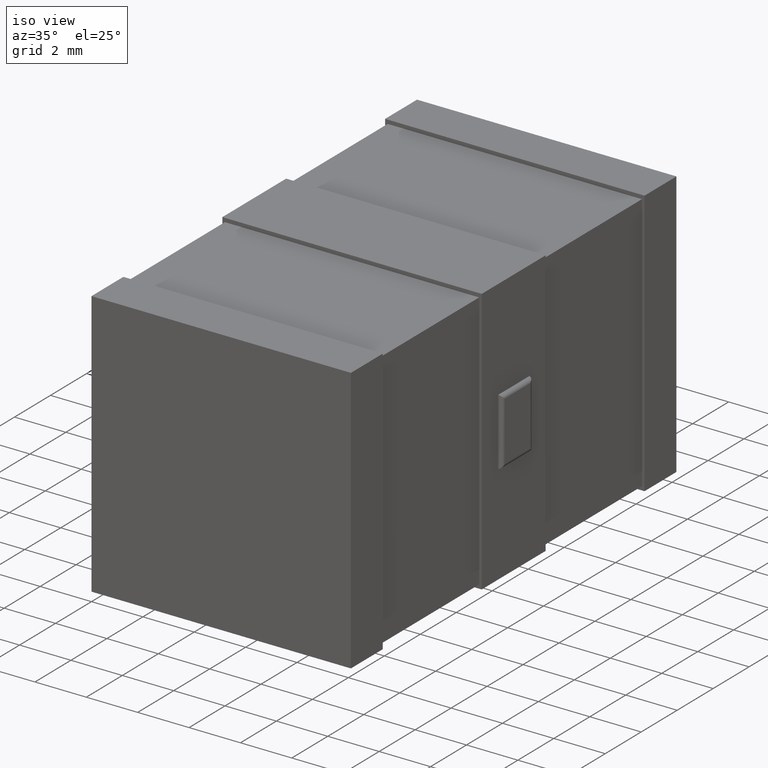
[diagram: clean part render]
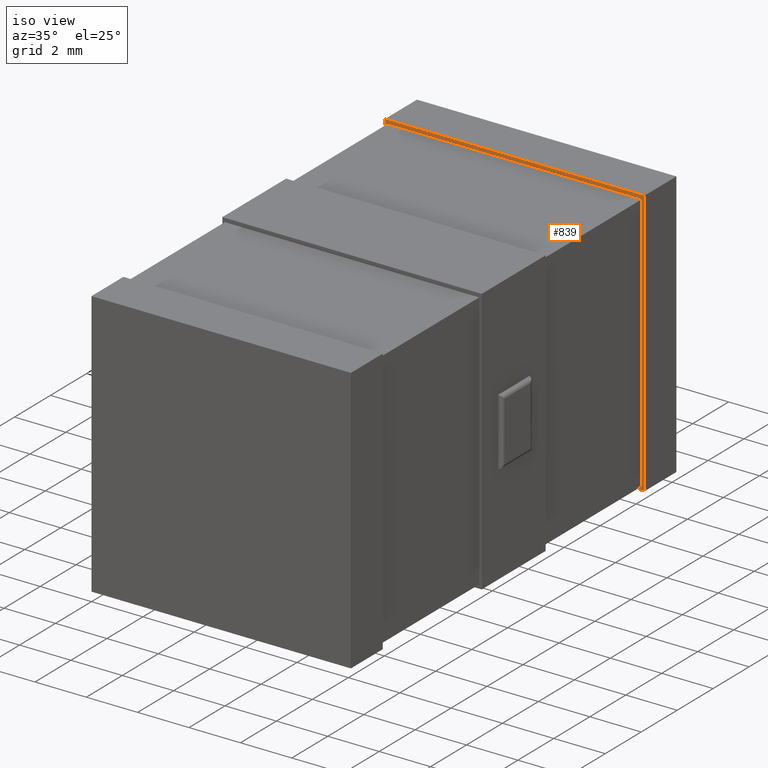
[diagram: same view with one face highlighted and labeled with its STEP entity id]
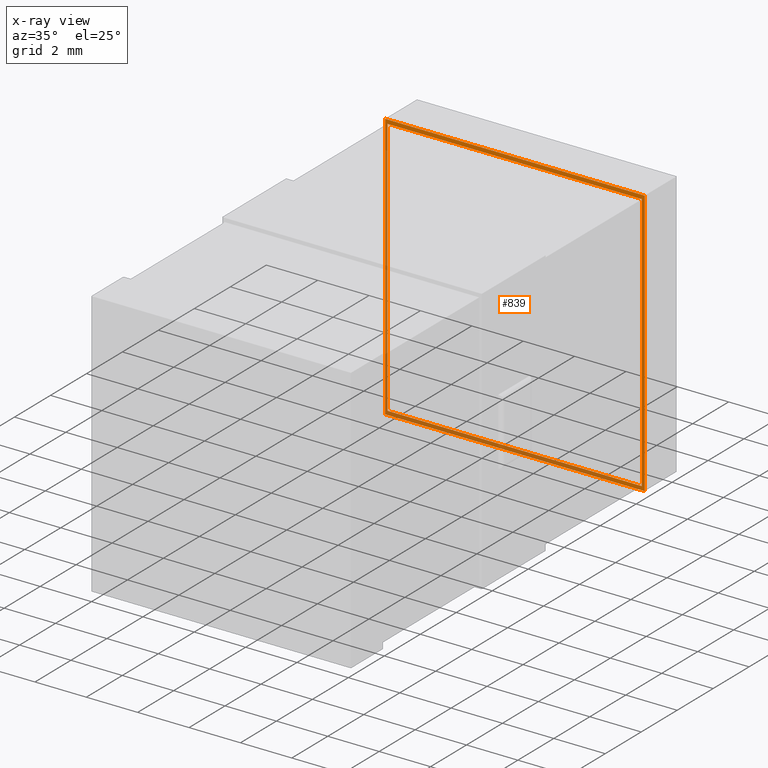
[diagram: x-ray of the same camera — body ghosted, the highlighted face saturated]
A machine part, iso view. The second image highlights one B-rep face of the part: STEP entity #839.
The next image is the same camera in x-ray: the body ghosted, the highlighted face saturated — about 44% of this face is hidden behind the body in this view.
In plain terms, the highlighted planar face has unit normal (-0, 1, 0).
Its self-contained STEP definition (entity closure, byte-faithful):
#23 = VERTEX_POINT ( 'NONE', #1452 ) ;
#52 = EDGE_CURVE ( 'NONE', #1324, #23, #2496, .T. ) ;
#73 = CARTESIAN_POINT ( 'NONE',  ( 0.0000000000000000000, 16.32619999999999600, 0.0000000000000000000 ) ) ;
#86 = ORIENTED_EDGE ( 'NONE', *, *, #2238, .T. ) ;
#177 = EDGE_LOOP ( 'NONE', ( #474, #3029, #2843, #1972 ) ) ;
#253 = VECTOR ( 'NONE', #2459, 1000.000000000000000 ) ;
#284 = VERTEX_POINT ( 'NONE', #2260 ) ;
#340 = VECTOR ( 'NONE', #1582, 1000.000000000000000 ) ;
#474 = ORIENTED_EDGE ( 'NONE', *, *, #2983, .T. ) ;
#488 = LINE ( 'NONE', #2358, #340 ) ;
#507 = EDGE_CURVE ( 'NONE', #1599, #718, #488, .T. ) ;
#510 = ORIENTED_EDGE ( 'NONE', *, *, #507, .F. ) ;
#643 = DIRECTION ( 'NONE',  ( -0.0000000000000000000, -0.0000000000000000000, 1.000000000000000000 ) ) ;
#718 = VERTEX_POINT ( 'NONE', #1483 ) ;
#757 = PLANE ( 'NONE',  #967 ) ;
#796 = DIRECTION ( 'NONE',  ( 0.0000000000000000000, -0.0000000000000000000, 1.000000000000000000 ) ) ;
#831 = VERTEX_POINT ( 'NONE', #2052 ) ;
#839 = ADVANCED_FACE ( 'NONE', ( #959, #3262 ), #757, .F. ) ;
#903 = VERTEX_POINT ( 'NONE', #3149 ) ;
#956 = VECTOR ( 'NONE', #1917, 1000.000000000000000 ) ;
#959 = FACE_OUTER_BOUND ( 'NONE', #1776, .T. ) ;
#967 = AXIS2_PLACEMENT_3D ( 'NONE', #2335, #2617, #796 ) ;
#1012 = VECTOR ( 'NONE', #2558, 1000.000000000000000 ) ;
#1129 = EDGE_CURVE ( 'NONE', #284, #1324, #1876, .T. ) ;
#1155 = CARTESIAN_POINT ( 'NONE',  ( 4.480002920640842700E-016, 16.32620000000000400, 10.40000000000000000 ) ) ;
#1282 = ORIENTED_EDGE ( 'NONE', *, *, #3014, .F. ) ;
#1324 = VERTEX_POINT ( 'NONE', #1957 ) ;
#1345 = LINE ( 'NONE', #3382, #1012 ) ;
#1452 = CARTESIAN_POINT ( 'NONE',  ( 0.1000000000000000100, 16.32620000000000400, 10.24999999999999800 ) ) ;
#1483 = CARTESIAN_POINT ( 'NONE',  ( 4.480002920640842700E-016, 16.32620000000000400, 10.40000000000000000 ) ) ;
#1582 = DIRECTION ( 'NONE',  ( -0.0000000000000000000, -0.0000000000000000000, 1.000000000000000000 ) ) ;
#1599 = VERTEX_POINT ( 'NONE', #73 ) ;
#1776 = EDGE_LOOP ( 'NONE', ( #510, #1282, #2791, #86 ) ) ;
#1801 = LINE ( 'NONE', #2376, #2040 ) ;
#1876 = LINE ( 'NONE', #3007, #956 ) ;
#1888 = VECTOR ( 'NONE', #2419, 1000.000000000000000 ) ;
#1914 = CARTESIAN_POINT ( 'NONE',  ( 10.09999999999999800, 16.32620000000000400, 0.0000000000000000000 ) ) ;
#1917 = DIRECTION ( 'NONE',  ( -0.0000000000000000000, -0.0000000000000000000, 1.000000000000000000 ) ) ;
#1923 = CARTESIAN_POINT ( 'NONE',  ( 0.1000000000000000100, 16.32620000000000400, 10.24999999999999800 ) ) ;
#1957 = CARTESIAN_POINT ( 'NONE',  ( 10.00000000000000000, 16.32620000000000400, 10.24999999999999800 ) ) ;
#1972 = ORIENTED_EDGE ( 'NONE', *, *, #3136, .T. ) ;
#2040 = VECTOR ( 'NONE', #3166, 1000.000000000000000 ) ;
#2052 = CARTESIAN_POINT ( 'NONE',  ( 10.09999999999999800, 16.32620000000000400, 10.40000000000000000 ) ) ;
#2237 = LINE ( 'NONE', #1155, #253 ) ;
#2238 = EDGE_CURVE ( 'NONE', #831, #718, #2237, .T. ) ;
#2260 = CARTESIAN_POINT ( 'NONE',  ( 10.00000000000000000, 16.32620000000000400, 0.1500000000000010200 ) ) ;
#2287 = EDGE_CURVE ( 'NONE', #3365, #831, #2569, .T. ) ;
#2335 = CARTESIAN_POINT ( 'NONE',  ( 4.480002920640842700E-016, 16.32620000000000400, 10.24999999999999800 ) ) ;
#2358 = CARTESIAN_POINT ( 'NONE',  ( 4.480002920640842700E-016, 16.32620000000000400, 10.24999999999999800 ) ) ;
#2376 = CARTESIAN_POINT ( 'NONE',  ( 4.480002920640842700E-016, 16.32620000000000400, 0.0000000000000000000 ) ) ;
#2419 = DIRECTION ( 'NONE',  ( 0.0000000000000000000, 0.0000000000000000000, 1.000000000000000000 ) ) ;
#2459 = DIRECTION ( 'NONE',  ( -1.000000000000000000, -0.0000000000000000000, -0.0000000000000000000 ) ) ;
#2496 = LINE ( 'NONE', #2590, #3169 ) ;
#2558 = DIRECTION ( 'NONE',  ( -1.000000000000000000, -0.0000000000000000000, 0.0000000000000000000 ) ) ;
#2569 = LINE ( 'NONE', #3005, #2780 ) ;
#2590 = CARTESIAN_POINT ( 'NONE',  ( 4.480002920640842700E-016, 16.32620000000000400, 10.24999999999999800 ) ) ;
#2617 = DIRECTION ( 'NONE',  ( -0.0000000000000000000, 1.000000000000000000, 0.0000000000000000000 ) ) ;
#2656 = DIRECTION ( 'NONE',  ( -1.000000000000000000, -0.0000000000000000000, -0.0000000000000000000 ) ) ;
#2780 = VECTOR ( 'NONE', #643, 1000.000000000000000 ) ;
#2791 = ORIENTED_EDGE ( 'NONE', *, *, #2287, .T. ) ;
#2843 = ORIENTED_EDGE ( 'NONE', *, *, #1129, .F. ) ;
#2960 = LINE ( 'NONE', #1923, #1888 ) ;
#2983 = EDGE_CURVE ( 'NONE', #903, #23, #2960, .T. ) ;
#3005 = CARTESIAN_POINT ( 'NONE',  ( 10.09999999999999800, 16.32620000000000400, 10.24999999999999800 ) ) ;
#3007 = CARTESIAN_POINT ( 'NONE',  ( 10.00000000000000000, 16.32620000000000400, 10.24999999999999800 ) ) ;
#3014 = EDGE_CURVE ( 'NONE', #3365, #1599, #1801, .T. ) ;
#3029 = ORIENTED_EDGE ( 'NONE', *, *, #52, .F. ) ;
#3136 = EDGE_CURVE ( 'NONE', #284, #903, #1345, .T. ) ;
#3149 = CARTESIAN_POINT ( 'NONE',  ( 0.1000000000000000100, 16.32620000000000400, 0.1500000000000010200 ) ) ;
#3166 = DIRECTION ( 'NONE',  ( -1.000000000000000000, -0.0000000000000000000, 0.0000000000000000000 ) ) ;
#3169 = VECTOR ( 'NONE', #2656, 1000.000000000000000 ) ;
#3262 = FACE_BOUND ( 'NONE', #177, .T. ) ;
#3365 = VERTEX_POINT ( 'NONE', #1914 ) ;
#3382 = CARTESIAN_POINT ( 'NONE',  ( 4.480002920640842700E-016, 16.32620000000000400, 0.1500000000000003600 ) ) ;